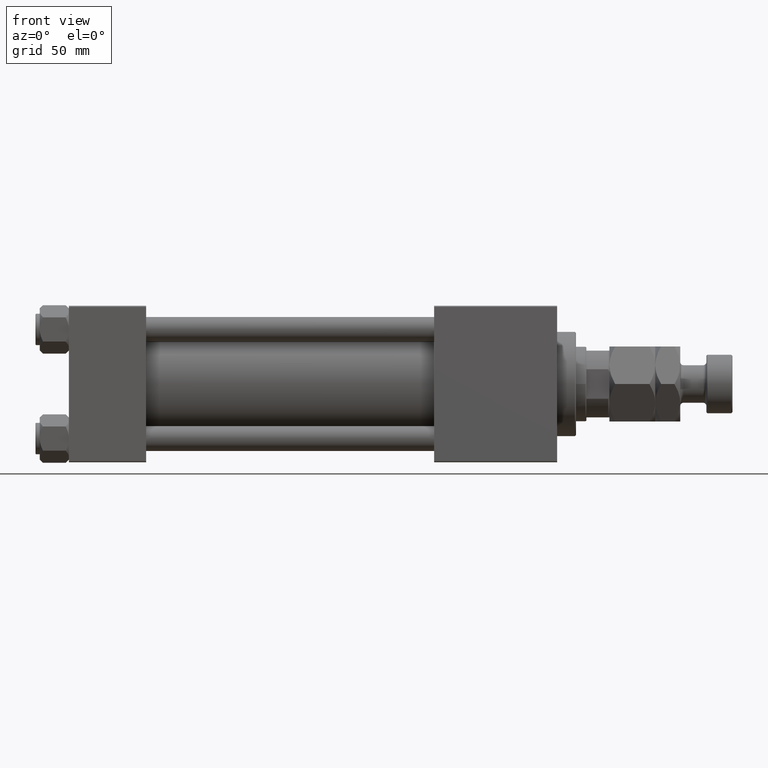
[diagram: clean part render]
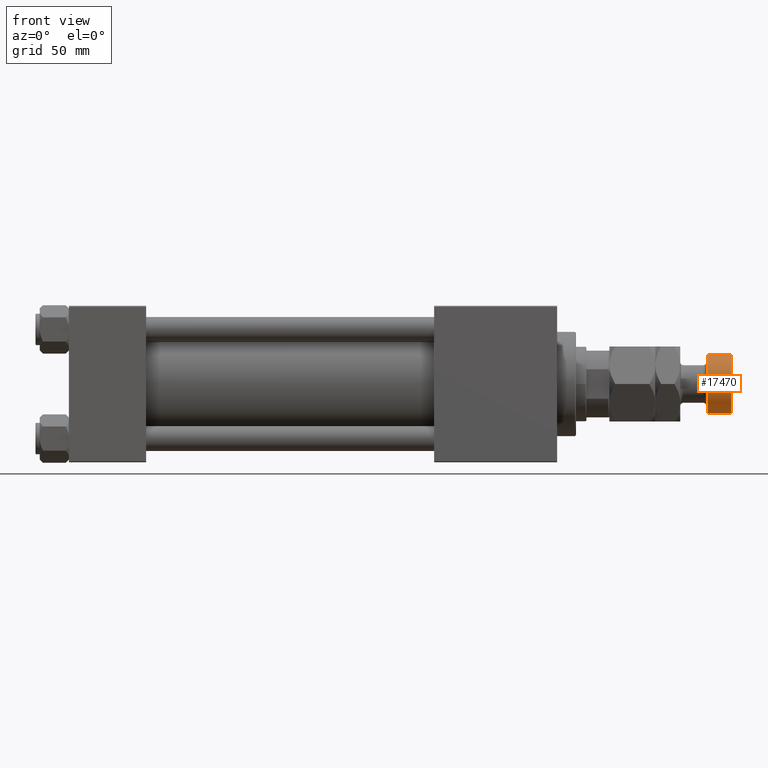
[diagram: same view with one face highlighted and labeled with its STEP entity id]
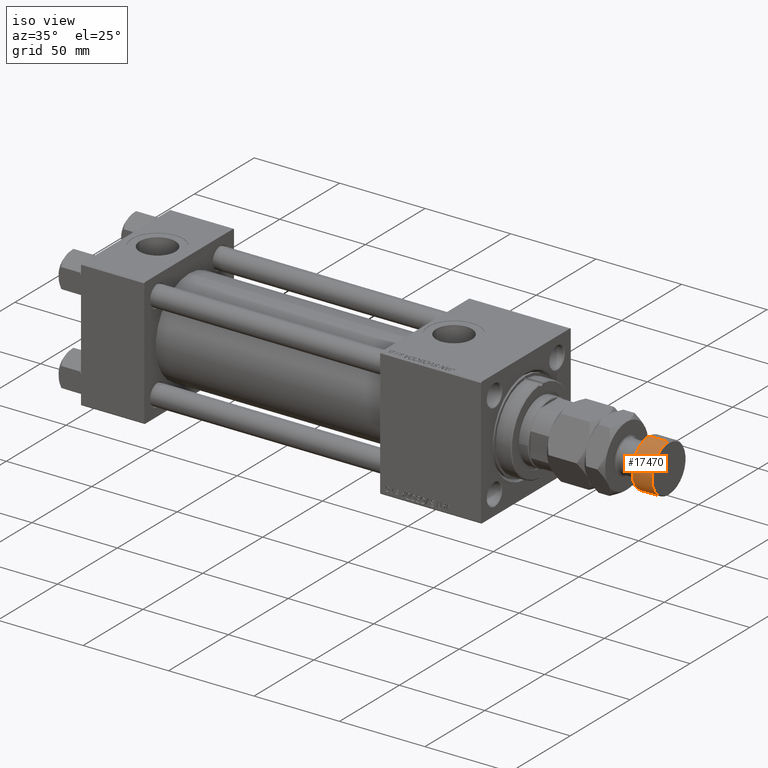
[diagram: same view with one face highlighted and labeled with its STEP entity id]
A machine part, front view. The second image highlights one B-rep face of the part: STEP entity #17470.
A second angle (iso view) of the same face is appended — the face is thin or edge-on in the first view.
In plain terms, the highlighted cylindrical surface (edge-blend (fillet) strip) has radius 14 mm, axis along (-1, -0, 0).
Its self-contained STEP definition (entity closure, byte-faithful):
#2090 = DIRECTION ( 'NONE',  ( 0.000000000000000000, 0.000000000000000000, -1.000000000000000000 ) ) ;
#3698 = ORIENTED_EDGE ( 'NONE', *, *, #4277, .T. ) ;
#4277 = EDGE_CURVE ( 'NONE', #38471, #43021, #10521, .T. ) ;
#6043 = DIRECTION ( 'NONE',  ( 1.000000000000000000, 0.000000000000000000, 0.000000000000000000 ) ) ;
#6796 = CARTESIAN_POINT ( 'NONE',  ( -14.00000000000000000, 0.000000000000000000, 59.00000000000000000 ) ) ;
#8362 = DIRECTION ( 'NONE',  ( -0.000000000000000000, -0.000000000000000000, -1.000000000000000000 ) ) ;
#9101 = AXIS2_PLACEMENT_3D ( 'NONE', #17930, #2090, #6043 ) ;
#9939 = CARTESIAN_POINT ( 'NONE',  ( 0.000000000000000000, 0.000000000000000000, 59.00000000000000000 ) ) ;
#10339 = ORIENTED_EDGE ( 'NONE', *, *, #48980, .F. ) ;
#10475 = DIRECTION ( 'NONE',  ( -0.000000000000000000, -0.000000000000000000, -1.000000000000000000 ) ) ;
#10521 = LINE ( 'NONE', #6796, #49118 ) ;
#13446 = DIRECTION ( 'NONE',  ( 1.000000000000000000, 0.000000000000000000, 0.000000000000000000 ) ) ;
#13740 = CIRCLE ( 'NONE', #26405, 14.00000000000000000 ) ;
#15759 = LINE ( 'NONE', #24718, #48801 ) ;
#15916 = CARTESIAN_POINT ( 'NONE',  ( -14.00000000000000000, 0.000000000000000000, 46.99999999999998579 ) ) ;
#16270 = CARTESIAN_POINT ( 'NONE',  ( 14.00000000000000000, 1.714505518806294638E-15, 58.50000000000002132 ) ) ;
#17470 = ADVANCED_FACE ( 'NONE', ( #33949 ), #17592, .T. ) ;
#17592 = CYLINDRICAL_SURFACE ( 'NONE', #26755, 14.00000000000000000 ) ;
#17930 = CARTESIAN_POINT ( 'NONE',  ( 0.000000000000000000, 0.000000000000000000, 58.50000000000002132 ) ) ;
#23402 = EDGE_LOOP ( 'NONE', ( #10339, #25712, #3698, #48903 ) ) ;
#24718 = CARTESIAN_POINT ( 'NONE',  ( 14.00000000000000000, 1.714505518806294638E-15, 59.00000000000000000 ) ) ;
#25712 = ORIENTED_EDGE ( 'NONE', *, *, #43056, .T. ) ;
#26405 = AXIS2_PLACEMENT_3D ( 'NONE', #49048, #49817, #13446 ) ;
#26755 = AXIS2_PLACEMENT_3D ( 'NONE', #9939, #10475, #42376 ) ;
#29205 = VERTEX_POINT ( 'NONE', #16270 ) ;
#31833 = CIRCLE ( 'NONE', #9101, 14.00000000000000000 ) ;
#32001 = VERTEX_POINT ( 'NONE', #38990 ) ;
#33949 = FACE_OUTER_BOUND ( 'NONE', #23402, .T. ) ;
#37406 = EDGE_CURVE ( 'NONE', #43021, #32001, #13740, .T. ) ;
#38471 = VERTEX_POINT ( 'NONE', #41262 ) ;
#38990 = CARTESIAN_POINT ( 'NONE',  ( 14.00000000000000000, 1.714505518806294638E-15, 46.99999999999998579 ) ) ;
#41262 = CARTESIAN_POINT ( 'NONE',  ( -14.00000000000000000, 0.000000000000000000, 58.50000000000002132 ) ) ;
#42376 = DIRECTION ( 'NONE',  ( -1.000000000000000000, 0.000000000000000000, 0.000000000000000000 ) ) ;
#43021 = VERTEX_POINT ( 'NONE', #15916 ) ;
#43056 = EDGE_CURVE ( 'NONE', #29205, #38471, #31833, .T. ) ;
#47143 = DIRECTION ( 'NONE',  ( -0.000000000000000000, -0.000000000000000000, -1.000000000000000000 ) ) ;
#48801 = VECTOR ( 'NONE', #8362, 1000.000000000000000 ) ;
#48903 = ORIENTED_EDGE ( 'NONE', *, *, #37406, .T. ) ;
#48980 = EDGE_CURVE ( 'NONE', #29205, #32001, #15759, .T. ) ;
#49048 = CARTESIAN_POINT ( 'NONE',  ( 0.000000000000000000, 0.000000000000000000, 46.99999999999998579 ) ) ;
#49118 = VECTOR ( 'NONE', #47143, 1000.000000000000000 ) ;
#49817 = DIRECTION ( 'NONE',  ( -0.000000000000000000, -0.000000000000000000, 1.000000000000000000 ) ) ;